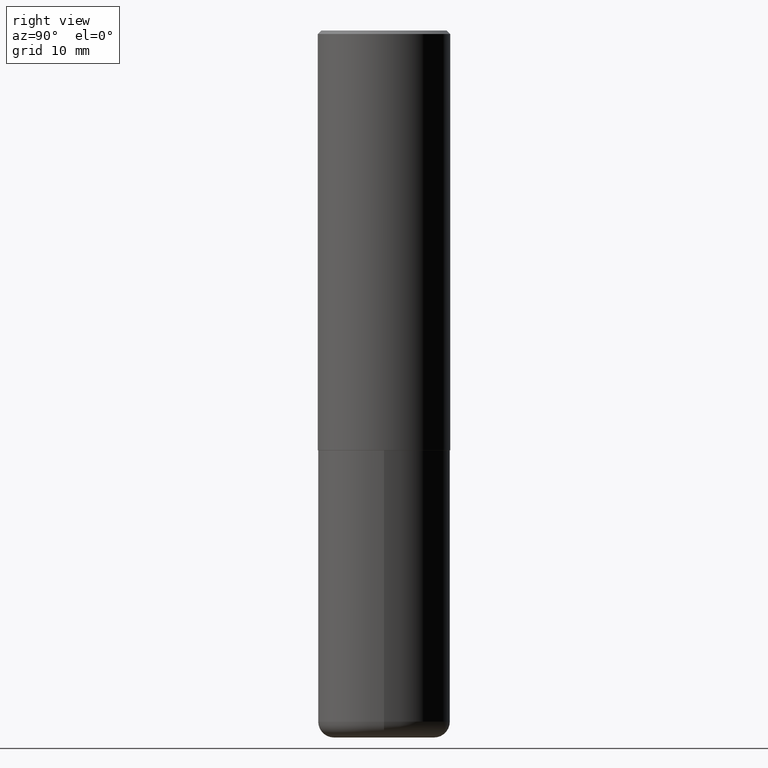
[diagram: clean part render]
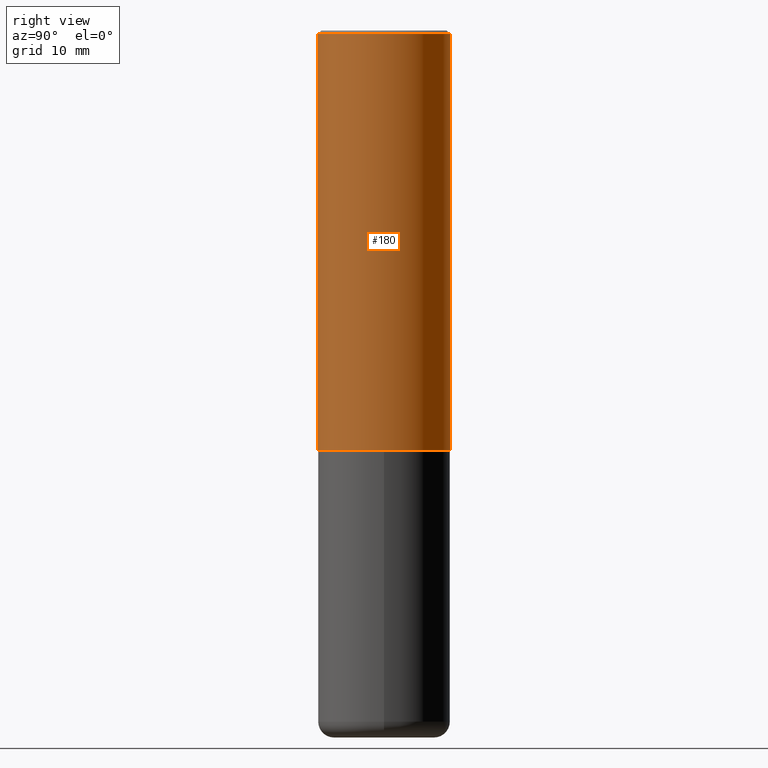
[diagram: same view with one face highlighted and labeled with its STEP entity id]
A machine part, right view. The second image highlights one B-rep face of the part: STEP entity #180.
In plain terms, the highlighted cylindrical surface (partial cylindrical patch) has radius 9.525 mm, axis along (-0, 0, 1).
Its self-contained STEP definition (entity closure, byte-faithful):
#1 = CARTESIAN_POINT ( 'NONE',  ( -2.618611004132351200E-15, -0.3750000000000001665, 1.309785868171475725E-15 ) ) ;
#14 = EDGE_CURVE ( 'NONE', #244, #279, #59, .T. ) ;
#19 = AXIS2_PLACEMENT_3D ( 'NONE', #36, #391, #165 ) ;
#24 = CARTESIAN_POINT ( 'NONE',  ( 5.803419400614030161E-29, -8.291817736104219412E-15, -2.373999999999999666 ) ) ;
#36 = CARTESIAN_POINT ( 'NONE',  ( 4.889148610458350090E-31, -6.985524630247905373E-17, -0.02000000000000010797 ) ) ;
#45 = CARTESIAN_POINT ( 'NONE',  ( -2.572686749164323547E-15, -0.3750000000000001110, -0.01999999999999879652 ) ) ;
#59 = CIRCLE ( 'NONE', #400, 0.3750000000000002776 ) ;
#74 = CARTESIAN_POINT ( 'NONE',  ( 2.664535259100406068E-15, 0.3749999999999920619, -2.374000000000001442 ) ) ;
#87 = EDGE_CURVE ( 'NONE', #385, #215, #372, .T. ) ;
#104 = CARTESIAN_POINT ( 'NONE',  ( 2.618611004132350411E-15, 0.3749999999999999445, -0.02000000000000141595 ) ) ;
#117 = CARTESIAN_POINT ( 'NONE',  ( -2.618611004132293613E-15, -0.3750000000000085487, -2.373999999999998334 ) ) ;
#131 = DIRECTION ( 'NONE',  ( -2.444574305229161733E-29, 3.492762315123933951E-15, 1.000000000000000000 ) ) ;
#150 = DIRECTION ( 'NONE',  ( -2.444574305229161733E-29, 3.492762315123933951E-15, 1.000000000000000000 ) ) ;
#165 = DIRECTION ( 'NONE',  ( -6.982962677686265922E-15, -1.000000000000000000, 3.494488891895536035E-15 ) ) ;
#166 = LINE ( 'NONE', #1, #282 ) ;
#178 = CARTESIAN_POINT ( 'NONE',  ( 2.664535259100376486E-15, 0.3750000000000001665, -1.309785868171475725E-15 ) ) ;
#180 = ADVANCED_FACE ( 'NONE', ( #327 ), #330, .T. ) ;
#207 = LINE ( 'NONE', #178, #308 ) ;
#208 = EDGE_CURVE ( 'NONE', #244, #385, #166, .T. ) ;
#215 = VERTEX_POINT ( 'NONE', #104 ) ;
#221 = EDGE_LOOP ( 'NONE', ( #356, #270, #339, #307 ) ) ;
#244 = VERTEX_POINT ( 'NONE', #117 ) ;
#264 = DIRECTION ( 'NONE',  ( -2.444574305229161733E-29, 3.492762315123933951E-15, 1.000000000000000000 ) ) ;
#270 = ORIENTED_EDGE ( 'NONE', *, *, #416, .T. ) ;
#279 = VERTEX_POINT ( 'NONE', #74 ) ;
#282 = VECTOR ( 'NONE', #131, 39.37007874015748143 ) ;
#284 = DIRECTION ( 'NONE',  ( -2.444574305229161733E-29, 3.492762315123933951E-15, 1.000000000000000000 ) ) ;
#307 = ORIENTED_EDGE ( 'NONE', *, *, #208, .F. ) ;
#308 = VECTOR ( 'NONE', #150, 39.37007874015748143 ) ;
#327 = FACE_OUTER_BOUND ( 'NONE', #221, .T. ) ;
#330 = CYLINDRICAL_SURFACE ( 'NONE', #392, 0.3750000000000001665 ) ;
#339 = ORIENTED_EDGE ( 'NONE', *, *, #87, .F. ) ;
#356 = ORIENTED_EDGE ( 'NONE', *, *, #14, .T. ) ;
#372 = CIRCLE ( 'NONE', #19, 0.3750000000000000555 ) ;
#385 = VERTEX_POINT ( 'NONE', #45 ) ;
#391 = DIRECTION ( 'NONE',  ( -2.444574305229161733E-29, 3.492762315123933951E-15, 1.000000000000000000 ) ) ;
#392 = AXIS2_PLACEMENT_3D ( 'NONE', #394, #264, #393 ) ;
#393 = DIRECTION ( 'NONE',  ( -6.982962677686266711E-15, -1.000000000000000000, 3.492762315123933556E-15 ) ) ;
#394 = CARTESIAN_POINT ( 'NONE',  ( 0.000000000000000000, 0.000000000000000000, 0.000000000000000000 ) ) ;
#400 = AXIS2_PLACEMENT_3D ( 'NONE', #24, #284, #411 ) ;
#411 = DIRECTION ( 'NONE',  ( -6.982962677686266711E-15, -1.000000000000000000, 3.642463991552348591E-15 ) ) ;
#416 = EDGE_CURVE ( 'NONE', #279, #215, #207, .T. ) ;